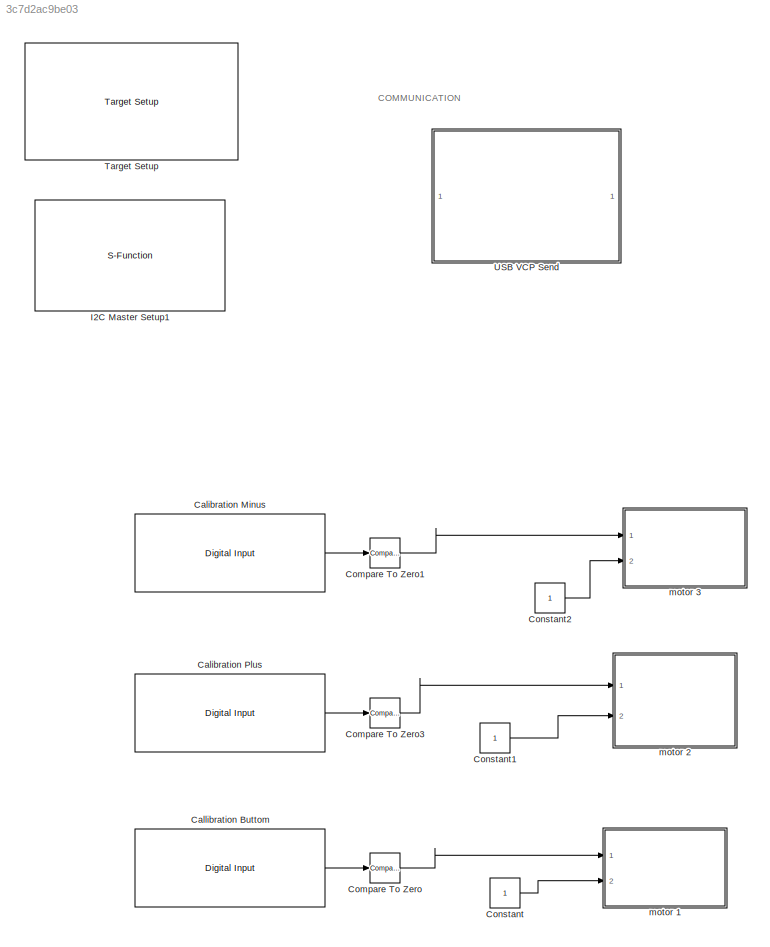
MODEL slx_3c7d2ac9be03
KIND model
CONFIG AbsTol = auto
CONFIG EnableMultiTasking = off
CONFIG FixedStep = auto
CONFIG MaxStep = auto
CONFIG MinStep = auto
CONFIG PreLoadFcn = waijung.modelPreload; % Required for working with Waijung Blockset. Do not remove.
CONFIG RelTol = 1e-3
CONFIG SampleTimeConstraint = Unconstrained
CONFIG Solver = FixedStepAuto
CONFIG SolverName = FixedStepAuto
CONFIG StartTime = 0.0
CONFIG StopTime = 10.0
BLOCK [Reference] Calibration Minus  REF=stm32f4_io_lib/Digital Input
  Ports = [0, 1]
  SourceBlock = stm32f4_io_lib/Digital Input
  SourceType = stm32f4_digital_input
BLOCK [Reference] Calibration Plus  REF=stm32f4_io_lib/Digital Input
  Ports = [0, 1]
  SourceBlock = stm32f4_io_lib/Digital Input
  SourceType = stm32f4_digital_input
BLOCK [Reference] Callibration Buttom  REF=stm32f4_io_lib/Digital Input
  Ports = [0, 1]
  SourceBlock = stm32f4_io_lib/Digital Input
  SourceType = stm32f4_digital_input
BLOCK [Reference] Compare To Zero  REF=simulink/Logic and Bit
Operations/Compare
To Zero
  Ports = [1, 1]
  SourceBlock = simulink/Logic and Bit\nOperations/Compare\nTo Zero
  SourceType = Compare To Zero
BLOCK [Reference] Compare To Zero1  REF=simulink/Logic and Bit
Operations/Compare
To Zero
  Ports = [1, 1]
  SourceBlock = simulink/Logic and Bit\nOperations/Compare\nTo Zero
  SourceType = Compare To Zero
BLOCK [Reference] Compare To Zero3  REF=simulink/Logic and Bit
Operations/Compare
To Zero
  Ports = [1, 1]
  SourceBlock = simulink/Logic and Bit\nOperations/Compare\nTo Zero
  SourceType = Compare To Zero
BLOCK [Constant] Constant
  OutDataTypeStr = boolean
BLOCK [Constant] Constant1
  OutDataTypeStr = boolean
BLOCK [Constant] Constant2
  OutDataTypeStr = boolean
BLOCK [S-Function] I2C Master Setup1
  EnableBusSupport = off
  FunctionName = stm32f4_i2c
  Parameters = configuration,module,transfer,clkspeed,timeout,sdapin,sclpin,writecount,readcount,inputtypearray,outputtypearray,confstr,sampletime,sampletimestr,blockid
  Ports = []
  SFcnIsStateOwnerBlock = off
  SFunctionDeploymentMode = off
BLOCK [Reference] Target Setup  REF=stm32f4_device_config_lib/Target Setup
  Ports = []
  Priority = 100
  SourceBlock = stm32f4_device_config_lib/Target Setup
  SourceType = stm32f4_target_setup
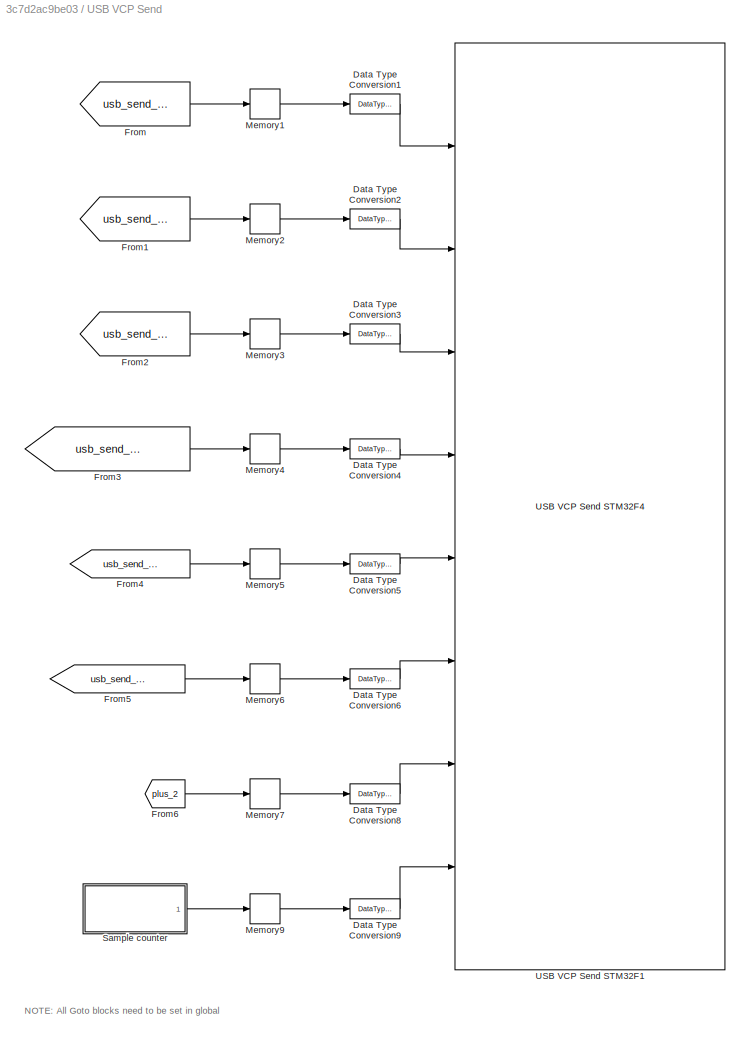
BLOCK [SubSystem] USB VCP Send
  Commented = on
  Ports = []
  RequestExecContextInheritance = off
  Variant = off
BLOCK [DataTypeConversion] USB VCP Send/Data Type Conversion1
  RndMeth = Floor
  SaturateOnIntegerOverflow = off
BLOCK [DataTypeConversion] USB VCP Send/Data Type Conversion2
  RndMeth = Floor
  SaturateOnIntegerOverflow = off
BLOCK [DataTypeConversion] USB VCP Send/Data Type Conversion3
  RndMeth = Floor
  SaturateOnIntegerOverflow = off
BLOCK [DataTypeConversion] USB VCP Send/Data Type Conversion4
  RndMeth = Floor
  SaturateOnIntegerOverflow = off
BLOCK [DataTypeConversion] USB VCP Send/Data Type Conversion5
  RndMeth = Floor
  SaturateOnIntegerOverflow = off
BLOCK [DataTypeConversion] USB VCP Send/Data Type Conversion6
  RndMeth = Floor
  SaturateOnIntegerOverflow = off
BLOCK [DataTypeConversion] USB VCP Send/Data Type Conversion8
  RndMeth = Floor
  SaturateOnIntegerOverflow = off
BLOCK [DataTypeConversion] USB VCP Send/Data Type Conversion9
  RndMeth = Floor
  SaturateOnIntegerOverflow = off
BLOCK [From] USB VCP Send/From
  GotoTag = usb_send_angle
  TagVisibility = global
BLOCK [From] USB VCP Send/From1
  GotoTag = usb_send_ref
  TagVisibility = global
BLOCK [From] USB VCP Send/From2
  GotoTag = usb_send_iref
  TagVisibility = global
BLOCK [From] USB VCP Send/From3
  GotoTag = usb_send_phi
  TagVisibility = global
BLOCK [From] USB VCP Send/From4
  GotoTag = usb_send_wx
  TagVisibility = global
BLOCK [From] USB VCP Send/From5
  GotoTag = usb_send_angle
  TagVisibility = global
BLOCK [From] USB VCP Send/From6
  GotoTag = plus_2
  TagVisibility = global
BLOCK [Memory] USB VCP Send/Memory1
  InheritSampleTime = on
BLOCK [Memory] USB VCP Send/Memory2
  InheritSampleTime = on
BLOCK [Memory] USB VCP Send/Memory3
  InheritSampleTime = on
BLOCK [Memory] USB VCP Send/Memory4
  InheritSampleTime = on
BLOCK [Memory] USB VCP Send/Memory5
  InheritSampleTime = on
BLOCK [Memory] USB VCP Send/Memory6
  InheritSampleTime = on
BLOCK [Memory] USB VCP Send/Memory7
  InheritSampleTime = on
BLOCK [Memory] USB VCP Send/Memory9
  InheritSampleTime = on
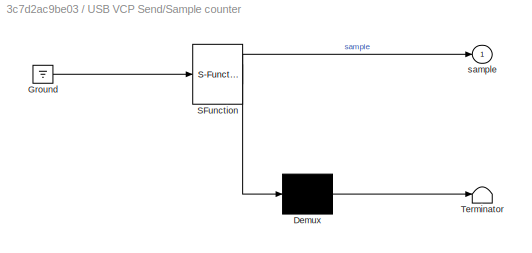
BLOCK [SubSystem] USB VCP Send/Sample counter
  ErrorFcn = Stateflow.Translate.translate
  PermitHierarchicalResolution = ExplicitOnly
  Ports = [0, 1]
  RequestExecContextInheritance = off
  SFBlockType = MATLAB Function
  TreatAsAtomicUnit = on
  Variant = off
BLOCK [Demux] USB VCP Send/Sample counter/ Demux 
  Outputs = 1
  Ports = [1, 1]
BLOCK [Ground] USB VCP Send/Sample counter/ Ground 
BLOCK [S-Function] USB VCP Send/Sample counter/ SFunction 
  EnableBusSupport = on
  FunctionName = sf_sfun
  PortCounts = [1 2]
  Ports = [1, 2]
  SFcnIsStateOwnerBlock = off
  SFunctionDeploymentMode = off
  Tag = Stateflow S-Function MotorTestProgram 1
BLOCK [Terminator] USB VCP Send/Sample counter/ Terminator 
BLOCK [Outport] USB VCP Send/Sample counter/sample
  IconDisplay = Port number
BLOCK [Reference] USB VCP Send/USB VCP Send STM32F1  REF=BC_USB/USB VCP Send STM32F4
  Ports = [8]
  SourceBlock = BC_USB/USB VCP Send STM32F4
  SourceType = USB_VCP_SEND_STM32F4 High Speed Large Data Packet Size
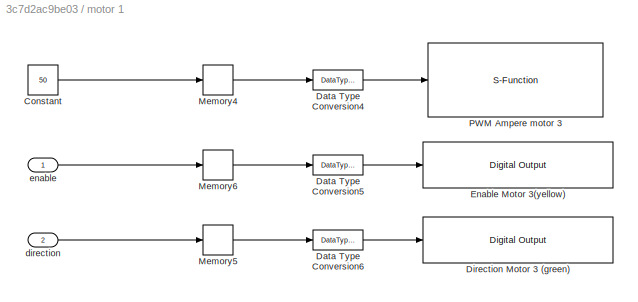
BLOCK [SubSystem] motor 1
  Ports = [2]
  RequestExecContextInheritance = off
  Variant = off
BLOCK [Constant] motor 1/Constant
  Value = 50
BLOCK [DataTypeConversion] motor 1/Data Type Conversion4
  RndMeth = Floor
  SaturateOnIntegerOverflow = off
BLOCK [DataTypeConversion] motor 1/Data Type Conversion5
  RndMeth = Floor
  SaturateOnIntegerOverflow = off
BLOCK [DataTypeConversion] motor 1/Data Type Conversion6
  OutDataTypeStr = boolean
  RndMeth = Floor
  SaturateOnIntegerOverflow = off
BLOCK [Reference] motor 1/Direction Motor 3 (green)  REF=stm32f4_io_lib/Digital Output
  Ports = [1]
  SourceBlock = stm32f4_io_lib/Digital Output
  SourceType = stm32f4_digital_output
BLOCK [Reference] motor 1/Enable Motor 3(yellow)  REF=stm32f4_io_lib/Digital Output
  Ports = [1]
  SourceBlock = stm32f4_io_lib/Digital Output
  SourceType = stm32f4_digital_output
BLOCK [Memory] motor 1/Memory4
  InheritSampleTime = on
BLOCK [Memory] motor 1/Memory5
  InheritSampleTime = on
BLOCK [Memory] motor 1/Memory6
  InheritSampleTime = on
BLOCK [S-Function] motor 1/PWM Ampere motor 3
  EnableBusSupport = off
  FunctionName = stm32f4_basicpwm_fixed
  Parameters = timer,pwmperiod,uc3m_pwmperiod,ch1pin,ch2pin,ch3pin,ch4pin,sampletime,sampletimestr,blockid,apb,portstr,pinstr,pinmat,timarr,timprescale,chmat,polaritystr
  Ports = [1]
  SFcnIsStateOwnerBlock = off
  SFunctionDeploymentMode = off
BLOCK [Inport] motor 1/direction
  IconDisplay = Port number
  Port = 2
BLOCK [Inport] motor 1/enable
  IconDisplay = Port number
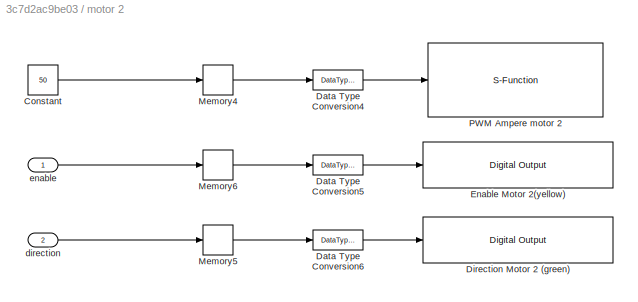
BLOCK [SubSystem] motor 2
  Ports = [2]
  RequestExecContextInheritance = off
  Variant = off
BLOCK [Constant] motor 2/Constant
  Value = 50
BLOCK [DataTypeConversion] motor 2/Data Type Conversion4
  RndMeth = Floor
  SaturateOnIntegerOverflow = off
BLOCK [DataTypeConversion] motor 2/Data Type Conversion5
  RndMeth = Floor
  SaturateOnIntegerOverflow = off
BLOCK [DataTypeConversion] motor 2/Data Type Conversion6
  OutDataTypeStr = boolean
  RndMeth = Floor
  SaturateOnIntegerOverflow = off
BLOCK [Reference] motor 2/Direction Motor 2 (green)  REF=stm32f4_io_lib/Digital Output
  Ports = [1]
  SourceBlock = stm32f4_io_lib/Digital Output
  SourceType = stm32f4_digital_output
BLOCK [Reference] motor 2/Enable Motor 2(yellow)  REF=stm32f4_io_lib/Digital Output
  Ports = [1]
  SourceBlock = stm32f4_io_lib/Digital Output
  SourceType = stm32f4_digital_output
BLOCK [Memory] motor 2/Memory4
  InheritSampleTime = on
BLOCK [Memory] motor 2/Memory5
  InheritSampleTime = on
BLOCK [Memory] motor 2/Memory6
  InheritSampleTime = on
BLOCK [S-Function] motor 2/PWM Ampere motor 2
  EnableBusSupport = off
  FunctionName = stm32f4_basicpwm_fixed
  Parameters = timer,pwmperiod,uc3m_pwmperiod,ch1pin,ch2pin,ch3pin,ch4pin,sampletime,sampletimestr,blockid,apb,portstr,pinstr,pinmat,timarr,timprescale,chmat,polaritystr
  Ports = [1]
  SFcnIsStateOwnerBlock = off
  SFunctionDeploymentMode = off
BLOCK [Inport] motor 2/direction
  IconDisplay = Port number
  Port = 2
BLOCK [Inport] motor 2/enable
  IconDisplay = Port number
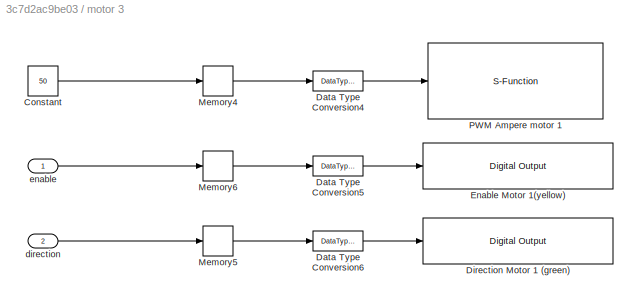
BLOCK [SubSystem] motor 3
  Ports = [2]
  RequestExecContextInheritance = off
  Variant = off
BLOCK [Constant] motor 3/Constant
  Value = 50
BLOCK [DataTypeConversion] motor 3/Data Type Conversion4
  RndMeth = Floor
  SaturateOnIntegerOverflow = off
BLOCK [DataTypeConversion] motor 3/Data Type Conversion5
  RndMeth = Floor
  SaturateOnIntegerOverflow = off
BLOCK [DataTypeConversion] motor 3/Data Type Conversion6
  OutDataTypeStr = boolean
  RndMeth = Floor
  SaturateOnIntegerOverflow = off
BLOCK [Reference] motor 3/Direction Motor 1 (green)  REF=stm32f4_io_lib/Digital Output
  Ports = [1]
  SourceBlock = stm32f4_io_lib/Digital Output
  SourceType = stm32f4_digital_output
BLOCK [Reference] motor 3/Enable Motor 1(yellow)  REF=stm32f4_io_lib/Digital Output
  Ports = [1]
  SourceBlock = stm32f4_io_lib/Digital Output
  SourceType = stm32f4_digital_output
BLOCK [Memory] motor 3/Memory4
  InheritSampleTime = on
BLOCK [Memory] motor 3/Memory5
  InheritSampleTime = on
BLOCK [Memory] motor 3/Memory6
  InheritSampleTime = on
BLOCK [S-Function] motor 3/PWM Ampere motor 1
  EnableBusSupport = off
  FunctionName = stm32f4_basicpwm_fixed
  Parameters = timer,pwmperiod,uc3m_pwmperiod,ch1pin,ch2pin,ch3pin,ch4pin,sampletime,sampletimestr,blockid,apb,portstr,pinstr,pinmat,timarr,timprescale,chmat,polaritystr
  Ports = [1]
  SFcnIsStateOwnerBlock = off
  SFunctionDeploymentMode = off
BLOCK [Inport] motor 3/direction
  IconDisplay = Port number
  Port = 2
BLOCK [Inport] motor 3/enable
  IconDisplay = Port number
ANNOTATION (root): COMMUNICATION
ANNOTATION USB VCP Send: NOTE: All Goto blocks need to be set in global
LINE Calibration Minus:1 -> Compare To Zero1:1
LINE Calibration Plus:1 -> Compare To Zero3:1
LINE Callibration Buttom:1 -> Compare To Zero:1
LINE Compare To Zero1:1 -> motor 3:1
LINE Compare To Zero3:1 -> motor 2:1
LINE Compare To Zero:1 -> motor 1:1
LINE Constant1:1 -> motor 2:2
LINE Constant2:1 -> motor 3:2
LINE Constant:1 -> motor 1:2
LINE USB VCP Send/Data Type Conversion1:1 -> USB VCP Send/USB VCP Send STM32F1:1
LINE USB VCP Send/Data Type Conversion2:1 -> USB VCP Send/USB VCP Send STM32F1:2
LINE USB VCP Send/Data Type Conversion3:1 -> USB VCP Send/USB VCP Send STM32F1:3
LINE USB VCP Send/Data Type Conversion4:1 -> USB VCP Send/USB VCP Send STM32F1:4
LINE USB VCP Send/Data Type Conversion5:1 -> USB VCP Send/USB VCP Send STM32F1:5
LINE USB VCP Send/Data Type Conversion6:1 -> USB VCP Send/USB VCP Send STM32F1:6
LINE USB VCP Send/Data Type Conversion8:1 -> USB VCP Send/USB VCP Send STM32F1:7
LINE USB VCP Send/Data Type Conversion9:1 -> USB VCP Send/USB VCP Send STM32F1:8
LINE USB VCP Send/From1:1 -> USB VCP Send/Memory2:1
LINE USB VCP Send/From2:1 -> USB VCP Send/Memory3:1
LINE USB VCP Send/From3:1 -> USB VCP Send/Memory4:1
LINE USB VCP Send/From4:1 -> USB VCP Send/Memory5:1
LINE USB VCP Send/From5:1 -> USB VCP Send/Memory6:1
LINE USB VCP Send/From6:1 -> USB VCP Send/Memory7:1
LINE USB VCP Send/From:1 -> USB VCP Send/Memory1:1
LINE USB VCP Send/Memory1:1 -> USB VCP Send/Data Type Conversion1:1
LINE USB VCP Send/Memory2:1 -> USB VCP Send/Data Type Conversion2:1
LINE USB VCP Send/Memory3:1 -> USB VCP Send/Data Type Conversion3:1
LINE USB VCP Send/Memory4:1 -> USB VCP Send/Data Type Conversion4:1
LINE USB VCP Send/Memory5:1 -> USB VCP Send/Data Type Conversion5:1
LINE USB VCP Send/Memory6:1 -> USB VCP Send/Data Type Conversion6:1
LINE USB VCP Send/Memory7:1 -> USB VCP Send/Data Type Conversion8:1
LINE USB VCP Send/Memory9:1 -> USB VCP Send/Data Type Conversion9:1
LINE USB VCP Send/Sample counter:1 -> USB VCP Send/Memory9:1
LINE motor 1/Constant:1 -> motor 1/Memory4:1
LINE motor 1/Data Type Conversion4:1 -> motor 1/PWM Ampere motor 3:1
LINE motor 1/Data Type Conversion5:1 -> motor 1/Enable Motor 3(yellow):1
LINE motor 1/Data Type Conversion6:1 -> motor 1/Direction Motor 3 (green):1
LINE motor 1/Memory4:1 -> motor 1/Data Type Conversion4:1
LINE motor 1/Memory5:1 -> motor 1/Data Type Conversion6:1
LINE motor 1/Memory6:1 -> motor 1/Data Type Conversion5:1
LINE motor 1/direction:1 -> motor 1/Memory5:1
LINE motor 1/enable:1 -> motor 1/Memory6:1
LINE motor 2/Constant:1 -> motor 2/Memory4:1
LINE motor 2/Data Type Conversion4:1 -> motor 2/PWM Ampere motor 2:1
LINE motor 2/Data Type Conversion5:1 -> motor 2/Enable Motor 2(yellow):1
LINE motor 2/Data Type Conversion6:1 -> motor 2/Direction Motor 2 (green):1
LINE motor 2/Memory4:1 -> motor 2/Data Type Conversion4:1
LINE motor 2/Memory5:1 -> motor 2/Data Type Conversion6:1
LINE motor 2/Memory6:1 -> motor 2/Data Type Conversion5:1
LINE motor 2/direction:1 -> motor 2/Memory5:1
LINE motor 2/enable:1 -> motor 2/Memory6:1
LINE motor 3/Constant:1 -> motor 3/Memory4:1
LINE motor 3/Data Type Conversion4:1 -> motor 3/PWM Ampere motor 1:1
LINE motor 3/Data Type Conversion5:1 -> motor 3/Enable Motor 1(yellow):1
LINE motor 3/Data Type Conversion6:1 -> motor 3/Direction Motor 1 (green):1
LINE motor 3/Memory4:1 -> motor 3/Data Type Conversion4:1
LINE motor 3/Memory5:1 -> motor 3/Data Type Conversion6:1
LINE motor 3/Memory6:1 -> motor 3/Data Type Conversion5:1
LINE motor 3/direction:1 -> motor 3/Memory5:1
LINE motor 3/enable:1 -> motor 3/Memory6:1
CHART USB VCP Send/Sample counter states=1 transitions=1
  STATE_LABEL 'eML_blk_kernel()'
  STATE_LABEL 'SCRIPT:\nfunction sample = SampleCounter\n%#codegen\n\npersistent sample_count;\n\nif isempty(sample_count)\n    sample_count = 0;\nend\n\nsample_count = sample_count + 1;\n\nsample = sample_count;'
